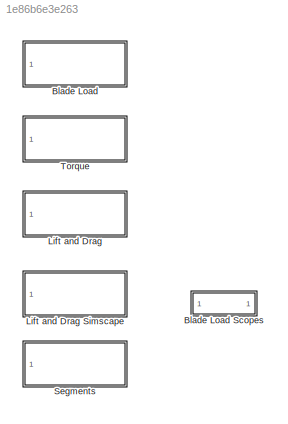
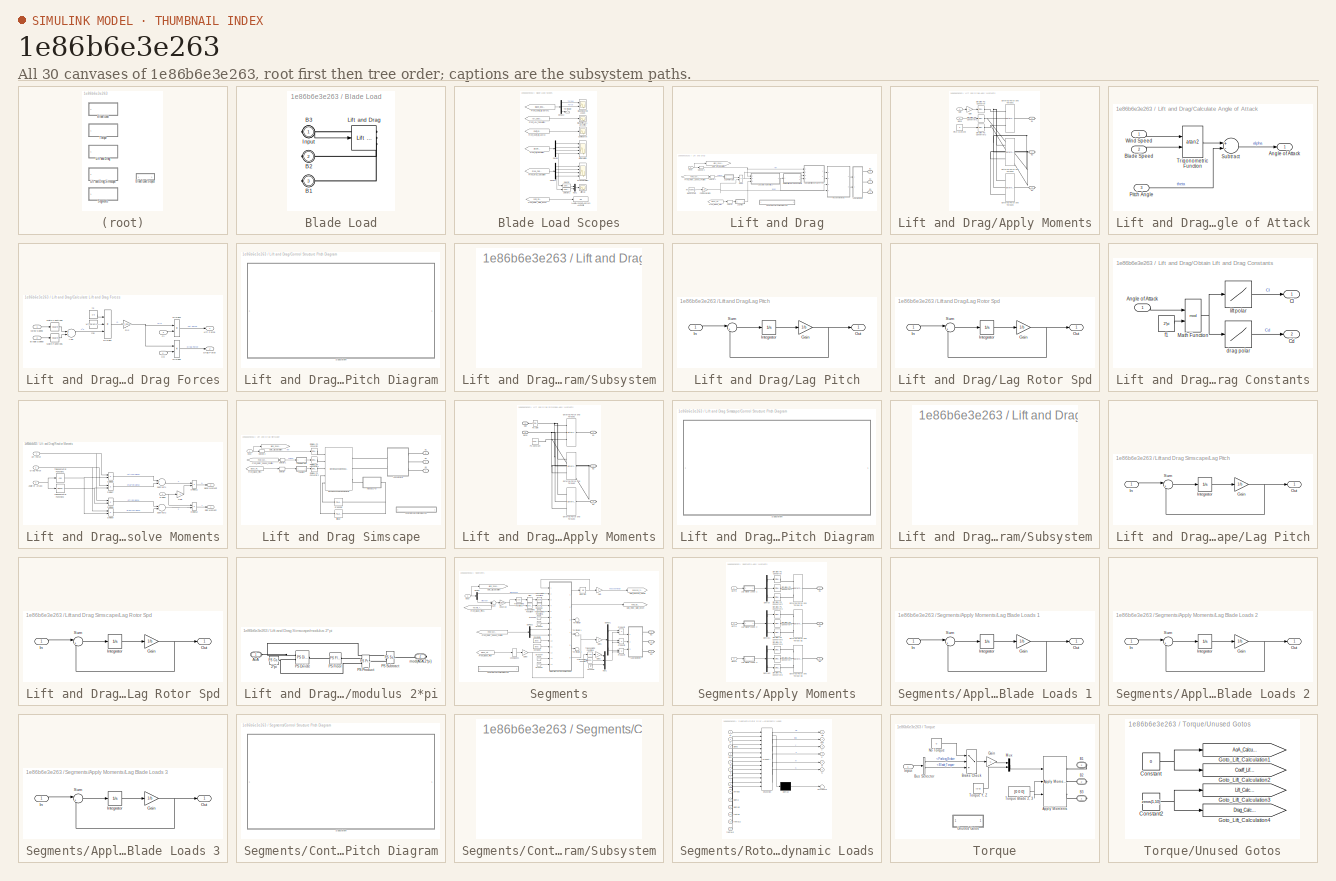
[diagram: thumbnail index - all 30 canvases of the model, root first then tree order]
MODEL slx_1e86b6e3e263
KIND library
CONFIG AbsTol = auto
CONFIG EnableMultiTasking = on
CONFIG FixedStep = auto
CONFIG MaxStep = auto
CONFIG MinStep = auto
CONFIG RelTol = 1e-3
CONFIG SampleTimeConstraint = Unconstrained
CONFIG Solver = ode45
CONFIG SolverName = ode45
CONFIG StartTime = 0.0
CONFIG StopTime = 10.0
BLOCK [SubSystem] Blade Load
  BlockChoice = Lift and Drag
  MemberBlocks = Lift and Drag,Lift and Drag Simscape,Segments,Torque
  Ports = [1, 0, 0, 0, 0, 0, 3]
  RequestExecContextInheritance = off
  TemplateBlock = self
BLOCK [SubSystem] Blade Load Scopes
  Ports = []
  RequestExecContextInheritance = off
BLOCK [Display] Blade Load Scopes/1 = Heli 2 = Young's Approx 3 = Windmill
  Decimation = 1
  Ports = [1]
BLOCK [Scope] Blade Load Scopes/Blade Bearing Loads
  Floating = off
  NumInputPorts = 2
  Ports = [2]
  ScopeSpecificationString = C++SS(StrPVP('Location','[536, 506, 1008, 715]'),StrPVP('Open','off'),StrPVP('ZoomMode','yonly'),MxPVP('AxesTitles',53,'struct(''axes1'',''%<SignalLabel>'',''axes2'',''%<SignalLabel>'')'),StrPVP('TimeRange','80'),StrPVP('YMin','-2000000~-500000'),StrPVP('YMax','4000000~500000'),StrPVP('SaveName','ScopeData10'),StrPVP('DataFormat','StructureWithTime'),StrPVP('LimitDataPoints','off'),StrPVP('BlockPa...<+443ch>
BLOCK [Scope] Blade Load Scopes/Blade Pitch, AoA Zero Pitch
  Floating = off
  NumInputPorts = 1
  Ports = [1]
  ScopeSpecificationString = C++SS(StrPVP('Location','[437, 643, 822, 910]'),StrPVP('Open','off'),StrPVP('ZoomMode','yonly'),MxPVP('AxesTitles',53,'struct(''axes1'',''%<SignalLabel>'')'),StrPVP('TimeRange','400'),StrPVP('YMin','0'),StrPVP('YMax','100'),StrPVP('SaveName','ScopeData3'),StrPVP('DataFormat','StructureWithTime'),StrPVP('LimitDataPoints','off'),StrPVP('BlockParamSampleTime','0'),StrPVP('DataLoggingDecimation','1'),...<+387ch>
BLOCK [Scope] Blade Load Scopes/Coeff Approx
  Floating = off
  NumInputPorts = 1
  Ports = [1]
  ScopeSpecificationString = C++SS(StrPVP('Location','[692, 281, 1164, 834]'),StrPVP('Open','off'),StrPVP('ZoomMode','yonly'),MxPVP('AxesTitles',53,'struct(''axes1'',''%<SignalLabel>'')'),StrPVP('TimeRange','400'),StrPVP('YMin','-0.1139986551164904'),StrPVP('YMax','0.01794057021302797'),StrPVP('SaveName','ScopeData4'),StrPVP('DataFormat','StructureWithTime'),StrPVP('LimitDataPoints','off'),StrPVP('BlockParamSampleTime','0'),S...<+422ch>
BLOCK [Demux] Blade Load Scopes/Demux
  DisplayOption = bar
  Outputs = [1 3 3 3]
  Ports = [1, 4]
BLOCK [Demux] Blade Load Scopes/Demux1
  DisplayOption = bar
  Outputs = [1 3 3 3]
  Ports = [1, 4]
BLOCK [Demux] Blade Load Scopes/Demux2
  DisplayOption = bar
  Outputs = [3 3 12]
  Ports = [1, 3]
BLOCK [Scope] Blade Load Scopes/Drag Calculation
  Floating = off
  NumInputPorts = 4
  Ports = [4]
  ScopeSpecificationString = C++SS(StrPVP('Location','[84, 409, 556, 962]'),StrPVP('Open','off'),StrPVP('ZoomMode','yonly'),MxPVP('AxesTitles',53,'struct(''axes1'',''%<SignalLabel>'',''axes2'',''%<SignalLabel>'',''axes3'',''%<SignalLabel>'',''axes4'',''%<SignalLabel>'')'),StrPVP('TimeRange','400'),StrPVP('YMin','-2000~-50~0~0'),StrPVP('YMax','4000~100~6000~6000'),StrPVP('SaveName','ScopeData5'),StrPVP('DataFormat','StructureW...<+500ch>
BLOCK [From] Blade Load Scopes/From_AoA_Calculation
  CloseFcn = tagdialog Close
  GotoTag = AoA_Calculation
BLOCK [From] Blade Load Scopes/From_Coeff_Lift_Approx
  CloseFcn = tagdialog Close
  GotoTag = Coeff_Lift_Approx
BLOCK [From] Blade Load Scopes/From_Coeff_Lift_Approx1
  CloseFcn = tagdialog Close
  GotoTag = Blade_Bearing_Loads
  TagVisibility = global
BLOCK [From] Blade Load Scopes/From_Drag_Calculation
  CloseFcn = tagdialog Close
  GotoTag = Drag_Calculation
BLOCK [From] Blade Load Scopes/From_Lift_Calculation
  CloseFcn = tagdialog Close
  GotoTag = Lift_Calculation
BLOCK [From] Blade Load Scopes/From_Rotor_State_Enum
  CloseFcn = tagdialog Close
  GotoTag = Rotor_State_Enum
BLOCK [Scope] Blade Load Scopes/Lift Calculation
  Floating = off
  NumInputPorts = 4
  Ports = [4]
  ScopeSpecificationString = C++SS(StrPVP('Location','[765, 373, 1275, 926]'),StrPVP('Open','off'),StrPVP('ZoomMode','yonly'),MxPVP('AxesTitles',53,'struct(''axes1'',''%<SignalLabel>'',''axes2'',''%<SignalLabel>'',''axes3'',''%<SignalLabel>'',''axes4'',''%<SignalLabel>'')'),StrPVP('TimeRange','400'),StrPVP('YMin','0~-50~-0.5~-50000'),StrPVP('YMax','2000~100~1.5~100000'),StrPVP('SaveName','ScopeData2'),StrPVP('DataFormat','Str...<+507ch>
BLOCK [Scope] Blade Load Scopes/Lift, Drag
  Floating = off
  NumInputPorts = 1
  Ports = [1]
  ScopeSpecificationString = C++SS(StrPVP('Location','[117, 603, 673, 870]'),StrPVP('Open','off'),StrPVP('ZoomMode','yonly'),MxPVP('AxesTitles',53,'struct(''axes1'',''%<SignalLabel>'')'),StrPVP('TimeRange','160'),StrPVP('YMin','-250.4351759669439'),StrPVP('YMax','408.3026221352307'),StrPVP('SaveName','ScopeData1'),StrPVP('DataFormat','StructureWithTime'),StrPVP('LimitDataPoints','off'),StrPVP('BlockParamSampleTime','0'),StrPV...<+418ch>
BLOCK [Mux] Blade Load Scopes/Mux1
  DisplayOption = bar
  Inputs = 2
  Ports = [2, 1]
BLOCK [Selector] Blade Load Scopes/Selector
  IndexOptions = Index vector (dialog)
  Indices = [1]
  InputPortWidth = 3
  OutputSizes = 1
  Ports = [1, 1]
BLOCK [Selector] Blade Load Scopes/Selector1
  IndexOptions = Index vector (dialog)
  Indices = [1 3]
  InputPortWidth = 3
  OutputSizes = 1
  Ports = [1, 1]
BLOCK [Terminator] Blade Load Scopes/Terminator
BLOCK [PMIOPort] Blade Load/B1
  Port = 3
  Side = Right
BLOCK [PMIOPort] Blade Load/B2
  Port = 2
  Side = Right
BLOCK [PMIOPort] Blade Load/B3
  Side = Right
BLOCK [Inport] Blade Load/Input
  IconDisplay = Port number
BLOCK [Reference] Blade Load/Lift and Drag  REF=$bdroot/Lift and Drag
  Ports = [1, 0, 0, 0, 0, 0, 3]
  SourceBlock = $bdroot/Lift and Drag
BLOCK [SubSystem] Lift and Drag
  Ports = [1, 0, 0, 0, 0, 0, 3]
  RequestExecContextInheritance = off
BLOCK [SubSystem] Lift and Drag Simscape
  Ports = [1, 0, 0, 0, 0, 0, 3]
  RequestExecContextInheritance = off
BLOCK [SubSystem] Lift and Drag Simscape/Apply Moments
  Ports = [0, 0, 0, 0, 0, 2, 3]
  RequestExecContextInheritance = off
BLOCK [PMIOPort] Lift and Drag Simscape/Apply Moments/B1
  Side = Right
BLOCK [PMIOPort] Lift and Drag Simscape/Apply Moments/B2
  Port = 2
  Side = Right
BLOCK [PMIOPort] Lift and Drag Simscape/Apply Moments/B3
  Port = 3
  Side = Right
BLOCK [PMIOPort] Lift and Drag Simscape/Apply Moments/Bend
  Port = 5
  Side = Left
BLOCK [Reference] Lift and Drag Simscape/Apply Moments/External Force and Torque1  REF=sm_lib/Forces and
Torques/External Force
and Torque
  Ports = [0, 0, 0, 0, 0, 3, 1]
  SourceBlock = sm_lib/Forces and\nTorques/External Force\nand Torque
  SourceProductBaseCode = MS
  SourceProductName = Simscape Multibody
  SourceType = External Force\nand Torque
BLOCK [Reference] Lift and Drag Simscape/Apply Moments/External Force and Torque2  REF=sm_lib/Forces and
Torques/External Force
and Torque
  Ports = [0, 0, 0, 0, 0, 3, 1]
  SourceBlock = sm_lib/Forces and\nTorques/External Force\nand Torque
  SourceProductBaseCode = MS
  SourceProductName = Simscape Multibody
  SourceType = External Force\nand Torque
BLOCK [Reference] Lift and Drag Simscape/Apply Moments/External Force and Torque3  REF=sm_lib/Forces and
Torques/External Force
and Torque
  Ports = [0, 0, 0, 0, 0, 3, 1]
  SourceBlock = sm_lib/Forces and\nTorques/External Force\nand Torque
  SourceProductBaseCode = MS
  SourceProductName = Simscape Multibody
  SourceType = External Force\nand Torque
BLOCK [Reference] Lift and Drag Simscape/Apply Moments/PS Constant  REF=fl_lib/Physical Signals/Sources/PS Constant
  Ports = [0, 0, 0, 0, 0, 0, 1]
  SourceBlock = fl_lib/Physical Signals/Sources/PS Constant
  SourceProductBaseCode = SS
  SourceProductName = Simscape
  SourceType = PS Constant
BLOCK [Reference] Lift and Drag Simscape/Apply Moments/PS Gain  REF=fl_lib/Physical Signals/Functions/PS Gain
  Ports = [0, 0, 0, 0, 0, 1, 1]
  SourceBlock = fl_lib/Physical Signals/Functions/PS Gain
  SourceProductBaseCode = SS
  SourceProductName = Simscape
  SourceType = PS Gain
BLOCK [PMIOPort] Lift and Drag Simscape/Apply Moments/Spin
  Port = 4
  Side = Left
BLOCK [PMIOPort] Lift and Drag Simscape/B1
  Port = 3
  Side = Right
  Tag = PMCPort
BLOCK [PMIOPort] Lift and Drag Simscape/B2
  Port = 2
  Side = Right
  Tag = PMCPort
BLOCK [PMIOPort] Lift and Drag Simscape/B3
  Side = Right
  Tag = PMCPort
BLOCK [Reference] Lift and Drag Simscape/Bending and Spinning Moments  REF=AerodynamicLoads_lib/Bending and Spinning
Moments
  Ports = [0, 0, 0, 0, 0, 5, 3]
  SourceBlock = AerodynamicLoads_lib/Bending and Spinning\nMoments
  SourceType = Bending and Spinning\nMoments
BLOCK [SubSystem] Lift and Drag Simscape/Control Structure Pitch Diagram
  Ports = []
  RequestExecContextInheritance = off
BLOCK [SubSystem] Lift and Drag Simscape/Control Structure Pitch Diagram/Subsystem
  Ports = []
  RequestExecContextInheritance = off
BLOCK [From] Lift and Drag Simscape/From_Blade_Pitch
  CloseFcn = tagdialog Close
  GotoTag = Blade_Pitch
  TagVisibility = global
BLOCK [From] Lift and Drag Simscape/From_Rotor_Speed_Position
  CloseFcn = tagdialog Close
  GotoTag = Rotor_Speed_Position
  TagVisibility = global
BLOCK [Goto] Lift and Drag Simscape/Goto_Lift_Calculation
  GotoTag = Wind_Speed_Direction
  TagVisibility = global
BLOCK [Inport] Lift and Drag Simscape/Input
  IconDisplay = Port number
BLOCK [SubSystem] Lift and Drag Simscape/Lag Pitch
  Ports = [1, 1]
  RequestExecContextInheritance = off
BLOCK [Gain] Lift and Drag Simscape/Lag Pitch/Gain
  Gain = 1/b
  OutDataTypeStr = Inherit: Inherit via internal rule
  ParamDataTypeStr = Inherit: Inherit via internal rule
  SaturateOnIntegerOverflow = off
BLOCK [Inport] Lift and Drag Simscape/Lag Pitch/In
  IconDisplay = Port number
BLOCK [Integrator] Lift and Drag Simscape/Lag Pitch/Integrator
  InitialCondition = x_initial
  Ports = [1, 1]
BLOCK [Outport] Lift and Drag Simscape/Lag Pitch/Out
  IconDisplay = Port number
BLOCK [Sum] Lift and Drag Simscape/Lag Pitch/Sum
  IconShape = round
  Inputs = |+-
  Ports = [2, 1]
BLOCK [SubSystem] Lift and Drag Simscape/Lag Rotor Spd
  Ports = [1, 1]
  RequestExecContextInheritance = off
BLOCK [Gain] Lift and Drag Simscape/Lag Rotor Spd/Gain
  Gain = 1/b
  OutDataTypeStr = Inherit: Inherit via internal rule
  ParamDataTypeStr = Inherit: Inherit via internal rule
  SaturateOnIntegerOverflow = off
BLOCK [Inport] Lift and Drag Simscape/Lag Rotor Spd/In
  IconDisplay = Port number
BLOCK [Integrator] Lift and Drag Simscape/Lag Rotor Spd/Integrator
  InitialCondition = x_initial
  Ports = [1, 1]
BLOCK [Outport] Lift and Drag Simscape/Lag Rotor Spd/Out
  IconDisplay = Port number
BLOCK [Sum] Lift and Drag Simscape/Lag Rotor Spd/Sum
  IconShape = round
  Inputs = |+-
  Ports = [2, 1]
BLOCK [Selector] Lift and Drag Simscape/Selector
  IndexOptions = Index vector (dialog)
  Indices = [1]
  InputPortWidth = 3
  OutputSizes = 1
  Ports = [1, 1]
BLOCK [Selector] Lift and Drag Simscape/Selector1
  IndexOptions = Index vector (dialog)
  Indices = [2]
  InputPortWidth = 2
  OutputSizes = 1
  Ports = [1, 1]
BLOCK [Selector] Lift and Drag Simscape/Selector2
  IndexOptions = Index vector (dialog)
  Indices = [1]
  InputPortWidth = 2
  OutputSizes = 1
  Ports = [1, 1]
BLOCK [Reference] Lift and Drag Simscape/Simulink-PS Converter  REF=nesl_utility/Simulink-PS
Converter
  Ports = [1, 0, 0, 0, 0, 0, 1]
  SourceBlock = nesl_utility/Simulink-PS\nConverter
  SourceProductBaseCode = SS
  SourceProductName = Simscape
  SourceType = Simulink-PS\nConverter
BLOCK [Reference] Lift and Drag Simscape/Simulink-PS Converter1  REF=nesl_utility/Simulink-PS
Converter
  Ports = [1, 0, 0, 0, 0, 0, 1]
  SourceBlock = nesl_utility/Simulink-PS\nConverter
  SourceProductBaseCode = SS
  SourceProductName = Simscape
  SourceType = Simulink-PS\nConverter
BLOCK [Reference] Lift and Drag Simscape/Simulink-PS Converter2  REF=nesl_utility/Simulink-PS
Converter
  Ports = [1, 0, 0, 0, 0, 0, 1]
  SourceBlock = nesl_utility/Simulink-PS\nConverter
  SourceProductBaseCode = SS
  SourceProductName = Simscape
  SourceType = Simulink-PS\nConverter
BLOCK [Reference] Lift and Drag Simscape/drag polar  REF=fl_lib/Physical Signals/Lookup Tables/PS Lookup Table (1D)
  Ports = [0, 0, 0, 0, 0, 1, 1]
  SourceBlock = fl_lib/Physical Signals/Lookup Tables/PS Lookup Table (1D)
  SourceProductBaseCode = SS
  SourceProductName = Simscape
  SourceType = PS Lookup Table (1D)
BLOCK [Reference] Lift and Drag Simscape/lift polar  REF=fl_lib/Physical Signals/Lookup Tables/PS Lookup Table (1D)
  Ports = [0, 0, 0, 0, 0, 1, 1]
  SourceBlock = fl_lib/Physical Signals/Lookup Tables/PS Lookup Table (1D)
  SourceProductBaseCode = SS
  SourceProductName = Simscape
  SourceType = PS Lookup Table (1D)
BLOCK [SubSystem] Lift and Drag Simscape/modulus 2*pi
  Ports = [0, 0, 0, 0, 0, 1, 1]
  RequestExecContextInheritance = off
BLOCK [Reference] Lift and Drag Simscape/modulus 2*pi/2*pi  REF=fl_lib/Physical Signals/Sources/PS Constant
  Ports = [0, 0, 0, 0, 0, 0, 1]
  SourceBlock = fl_lib/Physical Signals/Sources/PS Constant
  SourceProductBaseCode = SS
  SourceProductName = Simscape
  SourceType = PS Constant
BLOCK [PMIOPort] Lift and Drag Simscape/modulus 2*pi/AoA
  Side = Left
BLOCK [Reference] Lift and Drag Simscape/modulus 2*pi/PS Divide  REF=fl_lib/Physical Signals/Functions/PS Divide
  Ports = [0, 0, 0, 0, 0, 2, 1]
  SourceBlock = fl_lib/Physical Signals/Functions/PS Divide
  SourceProductBaseCode = SS
  SourceProductName = Simscape
  SourceType = PS Divide
BLOCK [Reference] Lift and Drag Simscape/modulus 2*pi/PS Floor  REF=fl_lib/Physical Signals/Nonlinear Operators/PS Floor
  Ports = [0, 0, 0, 0, 0, 1, 1]
  SourceBlock = fl_lib/Physical Signals/Nonlinear Operators/PS Floor
  SourceProductBaseCode = SS
  SourceProductName = Simscape
  SourceType = PS Floor
BLOCK [Reference] Lift and Drag Simscape/modulus 2*pi/PS Product  REF=fl_lib/Physical Signals/Functions/PS Product
  Ports = [0, 0, 0, 0, 0, 2, 1]
  SourceBlock = fl_lib/Physical Signals/Functions/PS Product
  SourceProductBaseCode = SS
  SourceProductName = Simscape
  SourceType = PS Product
BLOCK [Reference] Lift and Drag Simscape/modulus 2*pi/PS Subtract  REF=fl_lib/Physical Signals/Functions/PS Subtract
  Ports = [0, 0, 0, 0, 0, 2, 1]
  SourceBlock = fl_lib/Physical Signals/Functions/PS Subtract
  SourceProductBaseCode = SS
  SourceProductName = Simscape
  SourceType = PS Subtract
BLOCK [PMIOPort] Lift and Drag Simscape/modulus 2*pi/mod(AoA,2*pi)
  Port = 2
  Side = Right
BLOCK [SubSystem] Lift and Drag/Apply Moments
  Ports = [2, 0, 0, 0, 0, 0, 3]
  RequestExecContextInheritance = off
BLOCK [PMIOPort] Lift and Drag/Apply Moments/B1
  Side = Right
BLOCK [PMIOPort] Lift and Drag/Apply Moments/B2
  Port = 2
  Side = Right
BLOCK [PMIOPort] Lift and Drag/Apply Moments/B3
  Port = 3
  Side = Right
BLOCK [Inport] Lift and Drag/Apply Moments/Bend
  IconDisplay = Port number
  Port = 2
BLOCK [Reference] Lift and Drag/Apply Moments/External Force and Torque1  REF=sm_lib/Forces and
Torques/External Force
and Torque
  Ports = [0, 0, 0, 0, 0, 3, 1]
  SourceBlock = sm_lib/Forces and\nTorques/External Force\nand Torque
  SourceProductBaseCode = MS
  SourceProductName = Simscape Multibody
  SourceType = External Force\nand Torque
BLOCK [Reference] Lift and Drag/Apply Moments/External Force and Torque2  REF=sm_lib/Forces and
Torques/External Force
and Torque
  Ports = [0, 0, 0, 0, 0, 3, 1]
  SourceBlock = sm_lib/Forces and\nTorques/External Force\nand Torque
  SourceProductBaseCode = MS
  SourceProductName = Simscape Multibody
  SourceType = External Force\nand Torque
BLOCK [Reference] Lift and Drag/Apply Moments/External Force and Torque3  REF=sm_lib/Forces and
Torques/External Force
and Torque
  Ports = [0, 0, 0, 0, 0, 3, 1]
  SourceBlock = sm_lib/Forces and\nTorques/External Force\nand Torque
  SourceProductBaseCode = MS
  SourceProductName = Simscape Multibody
  SourceType = External Force\nand Torque
BLOCK [Gain] Lift and Drag/Apply Moments/Gain
  Gain = -1
  OutDataTypeStr = Inherit: Inherit via internal rule
  ParamDataTypeStr = Inherit: Inherit via internal rule
  SaturateOnIntegerOverflow = off
BLOCK [Constant] Lift and Drag/Apply Moments/Pitch Moment
  Value = 0
BLOCK [Reference] Lift and Drag/Apply Moments/Simulink-PS Converter  REF=nesl_utility/Simulink-PS
Converter
  Ports = [1, 0, 0, 0, 0, 0, 1]
  SourceBlock = nesl_utility/Simulink-PS\nConverter
  SourceProductBaseCode = SS
  SourceProductName = Simscape
  SourceType = Simulink-PS\nConverter
BLOCK [Reference] Lift and Drag/Apply Moments/Simulink-PS Converter1  REF=nesl_utility/Simulink-PS
Converter
  Ports = [1, 0, 0, 0, 0, 0, 1]
  SourceBlock = nesl_utility/Simulink-PS\nConverter
  SourceProductBaseCode = SS
  SourceProductName = Simscape
  SourceType = Simulink-PS\nConverter
BLOCK [Reference] Lift and Drag/Apply Moments/Simulink-PS Converter2  REF=nesl_utility/Simulink-PS
Converter
  Ports = [1, 0, 0, 0, 0, 0, 1]
  SourceBlock = nesl_utility/Simulink-PS\nConverter
  SourceProductBaseCode = SS
  SourceProductName = Simscape
  SourceType = Simulink-PS\nConverter
BLOCK [Inport] Lift and Drag/Apply Moments/Spin
  IconDisplay = Port number
BLOCK [PMIOPort] Lift and Drag/B1
  Port = 3
  Side = Right
  Tag = PMCPort
BLOCK [PMIOPort] Lift and Drag/B2
  Port = 2
  Side = Right
  Tag = PMCPort
BLOCK [PMIOPort] Lift and Drag/B3
  Side = Right
  Tag = PMCPort
BLOCK [Constant] Lift and Drag/Blade Length
  Value = WT_Params.Blade.length
BLOCK [SubSystem] Lift and Drag/Calculate Angle of Attack
  Ports = [3, 1]
  RequestExecContextInheritance = off
BLOCK [Outport] Lift and Drag/Calculate Angle of Attack/Angle of Attack
  IconDisplay = Port number
BLOCK [Inport] Lift and Drag/Calculate Angle of Attack/Blade Speed
  IconDisplay = Port number
  Port = 2
BLOCK [Inport] Lift and Drag/Calculate Angle of Attack/Pitch Angle
  IconDisplay = Port number
  Port = 3
BLOCK [Sum] Lift and Drag/Calculate Angle of Attack/Subtract
  InputSameDT = off
  Inputs = +-
  OutDataTypeStr = Inherit: Inherit via internal rule
  Ports = [2, 1]
  SaturateOnIntegerOverflow = off
BLOCK [Trigonometry] Lift and Drag/Calculate Angle of Attack/Trigonometric Function
  Operator = atan2
  Ports = [2, 1]
BLOCK [Inport] Lift and Drag/Calculate Angle of Attack/Wind Speed
  IconDisplay = Port number
BLOCK [SubSystem] Lift and Drag/Calculate Lift and Drag Forces
  Ports = [4, 2]
  RequestExecContextInheritance = off
BLOCK [Sum] Lift and Drag/Calculate Lift and Drag Forces/Add
  InputSameDT = off
  OutDataTypeStr = Inherit: Inherit via internal rule
  Ports = [2, 1]
  SaturateOnIntegerOverflow = off
BLOCK [Inport] Lift and Drag/Calculate Lift and Drag Forces/Blade Speed
  IconDisplay = Port number
  Port = 2
BLOCK [Inport] Lift and Drag/Calculate Lift and Drag Forces/Cd
  IconDisplay = Port number
  Port = 4
BLOCK [Inport] Lift and Drag/Calculate Lift and Drag Forces/Cl
  IconDisplay = Port number
  Port = 3
BLOCK [Product] Lift and Drag/Calculate Lift and Drag Forces/Divide1
  InputSameDT = off
  Inputs = ***
  OutDataTypeStr = Inherit: Inherit via internal rule
  Ports = [3, 1]
  RndMeth = Floor
  SaturateOnIntegerOverflow = off
BLOCK [Product] Lift and Drag/Calculate Lift and Drag Forces/Divide4
  InputSameDT = off
  Inputs = **
  OutDataTypeStr = Inherit: Inherit via internal rule
  Ports = [2, 1]
  RndMeth = Floor
  SaturateOnIntegerOverflow = off
BLOCK [Product] Lift and Drag/Calculate Lift and Drag Forces/Divide5
  InputSameDT = off
  Inputs = **
  OutDataTypeStr = Inherit: Inherit via internal rule
  Ports = [2, 1]
  RndMeth = Floor
  SaturateOnIntegerOverflow = off
BLOCK [Outport] Lift and Drag/Calculate Lift and Drag Forces/Drag Force
  IconDisplay = Port number
  Port = 2
BLOCK [Outport] Lift and Drag/Calculate Lift and Drag Forces/Lift Force
  IconDisplay = Port number
BLOCK [Math] Lift and Drag/Calculate Lift and Drag Forces/Math Function1
  Operator = square
  Ports = [1, 1]
BLOCK [Math] Lift and Drag/Calculate Lift and Drag Forces/Math Function2
  Operator = square
  Ports = [1, 1]
BLOCK [Gain] Lift and Drag/Calculate Lift and Drag Forces/R*c
  Gain = WT_Params.Blade.length*WT_Params.Blade.width
  OutDataTypeStr = Inherit: Inherit via internal rule
  ParamDataTypeStr = Inherit: Inherit via internal rule
  SaturateOnIntegerOverflow = off
BLOCK [Inport] Lift and Drag/Calculate Lift and Drag Forces/Wind Speed
  IconDisplay = Port number
BLOCK [Constant] Lift and Drag/Calculate Lift and Drag Forces/f2
  Value = 1/2
BLOCK [Constant] Lift and Drag/Calculate Lift and Drag Forces/rho
  Value = WT_Params.Air.Density
BLOCK [SubSystem] Lift and Drag/Control Structure Pitch Diagram
  Ports = []
  RequestExecContextInheritance = off
BLOCK [SubSystem] Lift and Drag/Control Structure Pitch Diagram/Subsystem
  Ports = []
  RequestExecContextInheritance = off
BLOCK [Product] Lift and Drag/Divide
  InputSameDT = off
  Inputs = **
  OutDataTypeStr = Inherit: Inherit via internal rule
  Ports = [2, 1]
  RndMeth = Floor
  SaturateOnIntegerOverflow = off
BLOCK [From] Lift and Drag/From_Blade_Pitch
  CloseFcn = tagdialog Close
  GotoTag = Blade_Pitch
  TagVisibility = global
BLOCK [From] Lift and Drag/From_Rotor_Speed_Position
  CloseFcn = tagdialog Close
  GotoTag = Rotor_Speed_Position
  TagVisibility = global
BLOCK [Goto] Lift and Drag/Goto_Lift_Calculation
  GotoTag = Wind_Speed_Direction
  TagVisibility = global
BLOCK [Inport] Lift and Drag/Input
  IconDisplay = Port number
BLOCK [SubSystem] Lift and Drag/Lag Pitch
  Ports = [1, 1]
  RequestExecContextInheritance = off
BLOCK [Gain] Lift and Drag/Lag Pitch/Gain
  Gain = 1/b
  OutDataTypeStr = Inherit: Inherit via internal rule
  ParamDataTypeStr = Inherit: Inherit via internal rule
  SaturateOnIntegerOverflow = off
BLOCK [Inport] Lift and Drag/Lag Pitch/In
  IconDisplay = Port number
BLOCK [Integrator] Lift and Drag/Lag Pitch/Integrator
  InitialCondition = x_initial
  Ports = [1, 1]
BLOCK [Outport] Lift and Drag/Lag Pitch/Out
  IconDisplay = Port number
BLOCK [Sum] Lift and Drag/Lag Pitch/Sum
  IconShape = round
  Inputs = |+-
  Ports = [2, 1]
BLOCK [SubSystem] Lift and Drag/Lag Rotor Spd
  Ports = [1, 1]
  RequestExecContextInheritance = off
BLOCK [Gain] Lift and Drag/Lag Rotor Spd/Gain
  Gain = 1/b
  OutDataTypeStr = Inherit: Inherit via internal rule
  ParamDataTypeStr = Inherit: Inherit via internal rule
  SaturateOnIntegerOverflow = off
BLOCK [Inport] Lift and Drag/Lag Rotor Spd/In
  IconDisplay = Port number
BLOCK [Integrator] Lift and Drag/Lag Rotor Spd/Integrator
  InitialCondition = x_initial
  Ports = [1, 1]
BLOCK [Outport] Lift and Drag/Lag Rotor Spd/Out
  IconDisplay = Port number
BLOCK [Sum] Lift and Drag/Lag Rotor Spd/Sum
  IconShape = round
  Inputs = |+-
  Ports = [2, 1]
BLOCK [SubSystem] Lift and Drag/Obtain Lift and Drag Constants
  Ports = [1, 2]
  RequestExecContextInheritance = off
BLOCK [Inport] Lift and Drag/Obtain Lift and Drag Constants/Angle of Attack
  IconDisplay = Port number
BLOCK [Outport] Lift and Drag/Obtain Lift and Drag Constants/Cd
  IconDisplay = Port number
  Port = 2
BLOCK [Outport] Lift and Drag/Obtain Lift and Drag Constants/Cl
  IconDisplay = Port number
BLOCK [Math] Lift and Drag/Obtain Lift and Drag Constants/Math Function
  Operator = mod
  Ports = [2, 1]
BLOCK [Lookup] Lift and Drag/Obtain Lift and Drag Constants/drag polar
  InputValues = WT_Params.NACA0015.AoA
  SaturateOnIntegerOverflow = off
  Table = WT_Params.NACA0015.Cd
BLOCK [Constant] Lift and Drag/Obtain Lift and Drag Constants/f1
  Value = 2*pi
BLOCK [Lookup] Lift and Drag/Obtain Lift and Drag Constants/lift polar
  InputValues = WT_Params.NACA0015.AoA
  SaturateOnIntegerOverflow = off
  Table = WT_Params.NACA0015.Cl
BLOCK [Gain] Lift and Drag/Point of Application
  Gain = 2/3
  OutDataTypeStr = Inherit: Inherit via internal rule
  ParamDataTypeStr = Inherit: Inherit via internal rule
  SaturateOnIntegerOverflow = off
BLOCK [SubSystem] Lift and Drag/Resolve Moments
  Ports = [4, 2]
  RequestExecContextInheritance = off
BLOCK [Inport] Lift and Drag/Resolve Moments/Angle of Attack
  IconDisplay = Port number
  Port = 3
BLOCK [Outport] Lift and Drag/Resolve Moments/Bend Moment
  IconDisplay = Port number
  Port = 2
BLOCK [Product] Lift and Drag/Resolve Moments/Divide11
  InputSameDT = off
  Inputs = **
  OutDataTypeStr = Inherit: Inherit via internal rule
  Ports = [2, 1]
  RndMeth = Floor
  SaturateOnIntegerOverflow = off
BLOCK [Product] Lift and Drag/Resolve Moments/Divide12
  InputSameDT = off
  Inputs = **
  OutDataTypeStr = Inherit: Inherit via internal rule
  Ports = [2, 1]
  RndMeth = Floor
  SaturateOnIntegerOverflow = off
BLOCK [Product] Lift and Drag/Resolve Moments/Divide6
  InputSameDT = off
  Inputs = **
  OutDataTypeStr = Inherit: Inherit via internal rule
  Ports = [2, 1]
  RndMeth = Floor
  SaturateOnIntegerOverflow = off
BLOCK [Product] Lift and Drag/Resolve Moments/Divide7
  InputSameDT = off
  Inputs = **
  OutDataTypeStr = Inherit: Inherit via internal rule
  Ports = [2, 1]
  RndMeth = Floor
  SaturateOnIntegerOverflow = off
BLOCK [Product] Lift and Drag/Resolve Moments/Divide8
  InputSameDT = off
  Inputs = **
  OutDataTypeStr = Inherit: Inherit via internal rule
  Ports = [2, 1]
  RndMeth = Floor
  SaturateOnIntegerOverflow = off
BLOCK [Product] Lift and Drag/Resolve Moments/Divide9
  InputSameDT = off
  Inputs = **
  OutDataTypeStr = Inherit: Inherit via internal rule
  Ports = [2, 1]
  RndMeth = Floor
  SaturateOnIntegerOverflow = off
BLOCK [Inport] Lift and Drag/Resolve Moments/Drag Force
  IconDisplay = Port number
  Port = 2
BLOCK [Gain] Lift and Drag/Resolve Moments/Gain
  Gain = -1
  OutDataTypeStr = Inherit: Inherit via internal rule
  ParamDataTypeStr = Inherit: Inherit via internal rule
  SaturateOnIntegerOverflow = off
BLOCK [Inport] Lift and Drag/Resolve Moments/Lift Force
  IconDisplay = Port number
BLOCK [Inport] Lift and Drag/Resolve Moments/Radius
  IconDisplay = Port number
  Port = 4
BLOCK [Outport] Lift and Drag/Resolve Moments/Spin Moment
  IconDisplay = Port number
BLOCK [Sum] Lift and Drag/Resolve Moments/Subtract1
  InputSameDT = off
  OutDataTypeStr = Inherit: Inherit via internal rule
  Ports = [2, 1]
  SaturateOnIntegerOverflow = off
BLOCK [Sum] Lift and Drag/Resolve Moments/Subtract2
  InputSameDT = off
  Inputs = +-
  OutDataTypeStr = Inherit: Inherit via internal rule
  Ports = [2, 1]
  SaturateOnIntegerOverflow = off
BLOCK [Trigonometry] Lift and Drag/Resolve Moments/Trigonometric Function1
  Operator = cos
  Ports = [1, 1]
BLOCK [Trigonometry] Lift and Drag/Resolve Moments/Trigonometric Function2
  Ports = [1, 1]
BLOCK [Selector] Lift and Drag/Selector
  IndexOptions = Index vector (dialog)
  Indices = [1]
  InputPortWidth = 3
  OutputSizes = 1
  Ports = [1, 1]
BLOCK [Selector] Lift and Drag/Selector1
  IndexOptions = Index vector (dialog)
  Indices = [2]
  InputPortWidth = 2
  OutputSizes = 1
  Ports = [1, 1]
BLOCK [Selector] Lift and Drag/Selector2
  IndexOptions = Index vector (dialog)
  Indices = [1]
  InputPortWidth = 2
  OutputSizes = 1
  Ports = [1, 1]
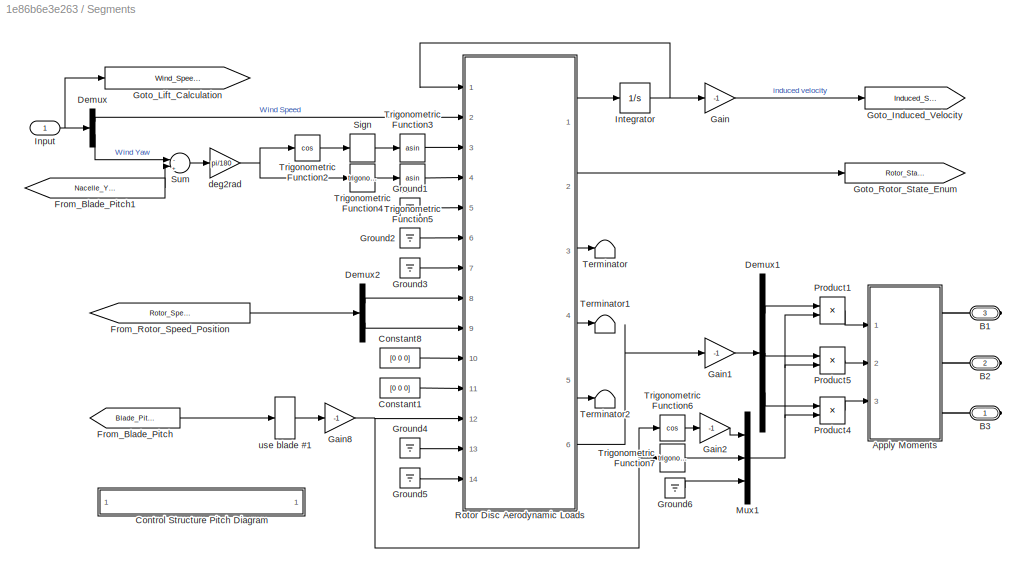
BLOCK [SubSystem] Segments
  Ports = [1, 0, 0, 0, 0, 0, 3]
  RequestExecContextInheritance = off
BLOCK [SubSystem] Segments/Apply Moments
  Ports = [3, 0, 0, 0, 0, 0, 3]
  RequestExecContextInheritance = off
BLOCK [PMIOPort] Segments/Apply Moments/B1
  Side = Right
BLOCK [Inport] Segments/Apply Moments/B1Trq
  IconDisplay = Port number
BLOCK [PMIOPort] Segments/Apply Moments/B2
  Port = 2
  Side = Right
BLOCK [Inport] Segments/Apply Moments/B2Trq
  IconDisplay = Port number
  Port = 2
BLOCK [PMIOPort] Segments/Apply Moments/B3
  Port = 3
  Side = Right
BLOCK [Inport] Segments/Apply Moments/B3Trq
  IconDisplay = Port number
  Port = 3
BLOCK [Demux] Segments/Apply Moments/Demux
  DisplayOption = bar
  Outputs = 3
  Ports = [1, 3]
BLOCK [Demux] Segments/Apply Moments/Demux1
  DisplayOption = bar
  Outputs = 3
  Ports = [1, 3]
BLOCK [Demux] Segments/Apply Moments/Demux2
  DisplayOption = bar
  Outputs = 3
  Ports = [1, 3]
BLOCK [Reference] Segments/Apply Moments/External Force and Torque B1  REF=sm_lib/Forces and
Torques/External Force
and Torque
  Ports = [0, 0, 0, 0, 0, 3, 1]
  SourceBlock = sm_lib/Forces and\nTorques/External Force\nand Torque
  SourceProductBaseCode = MS
  SourceProductName = Simscape Multibody
  SourceType = External Force\nand Torque
BLOCK [Reference] Segments/Apply Moments/External Force and Torque B2  REF=sm_lib/Forces and
Torques/External Force
and Torque
  Ports = [0, 0, 0, 0, 0, 3, 1]
  SourceBlock = sm_lib/Forces and\nTorques/External Force\nand Torque
  SourceProductBaseCode = MS
  SourceProductName = Simscape Multibody
  SourceType = External Force\nand Torque
BLOCK [Reference] Segments/Apply Moments/External Force and Torque B3  REF=sm_lib/Forces and
Torques/External Force
and Torque
  Ports = [0, 0, 0, 0, 0, 3, 1]
  SourceBlock = sm_lib/Forces and\nTorques/External Force\nand Torque
  SourceProductBaseCode = MS
  SourceProductName = Simscape Multibody
  SourceType = External Force\nand Torque
BLOCK [SubSystem] Segments/Apply Moments/Lag Blade Loads 1
  Ports = [1, 1]
  RequestExecContextInheritance = off
BLOCK [Gain] Segments/Apply Moments/Lag Blade Loads 1/Gain
  Gain = 1/b
  OutDataTypeStr = Inherit: Inherit via internal rule
  ParamDataTypeStr = Inherit: Inherit via internal rule
  SaturateOnIntegerOverflow = off
BLOCK [Inport] Segments/Apply Moments/Lag Blade Loads 1/In
  IconDisplay = Port number
BLOCK [Integrator] Segments/Apply Moments/Lag Blade Loads 1/Integrator
  InitialCondition = x_initial
  Ports = [1, 1]
BLOCK [Outport] Segments/Apply Moments/Lag Blade Loads 1/Out
  IconDisplay = Port number
BLOCK [Sum] Segments/Apply Moments/Lag Blade Loads 1/Sum
  IconShape = round
  Inputs = |+-
  Ports = [2, 1]
BLOCK [SubSystem] Segments/Apply Moments/Lag Blade Loads 2
  Ports = [1, 1]
  RequestExecContextInheritance = off
BLOCK [Gain] Segments/Apply Moments/Lag Blade Loads 2/Gain
  Gain = 1/b
  OutDataTypeStr = Inherit: Inherit via internal rule
  ParamDataTypeStr = Inherit: Inherit via internal rule
  SaturateOnIntegerOverflow = off
BLOCK [Inport] Segments/Apply Moments/Lag Blade Loads 2/In
  IconDisplay = Port number
BLOCK [Integrator] Segments/Apply Moments/Lag Blade Loads 2/Integrator
  InitialCondition = x_initial
  Ports = [1, 1]
BLOCK [Outport] Segments/Apply Moments/Lag Blade Loads 2/Out
  IconDisplay = Port number
BLOCK [Sum] Segments/Apply Moments/Lag Blade Loads 2/Sum
  IconShape = round
  Inputs = |+-
  Ports = [2, 1]
BLOCK [SubSystem] Segments/Apply Moments/Lag Blade Loads 3
  Ports = [1, 1]
  RequestExecContextInheritance = off
BLOCK [Gain] Segments/Apply Moments/Lag Blade Loads 3/Gain
  Gain = 1/b
  OutDataTypeStr = Inherit: Inherit via internal rule
  ParamDataTypeStr = Inherit: Inherit via internal rule
  SaturateOnIntegerOverflow = off
BLOCK [Inport] Segments/Apply Moments/Lag Blade Loads 3/In
  IconDisplay = Port number
BLOCK [Integrator] Segments/Apply Moments/Lag Blade Loads 3/Integrator
  InitialCondition = x_initial
  Ports = [1, 1]
BLOCK [Outport] Segments/Apply Moments/Lag Blade Loads 3/Out
  IconDisplay = Port number
BLOCK [Sum] Segments/Apply Moments/Lag Blade Loads 3/Sum
  IconShape = round
  Inputs = |+-
  Ports = [2, 1]
BLOCK [Reference] Segments/Apply Moments/Simulink-PS Converter  REF=nesl_utility/Simulink-PS
Converter
  Ports = [1, 0, 0, 0, 0, 0, 1]
  SourceBlock = nesl_utility/Simulink-PS\nConverter
  SourceProductBaseCode = SS
  SourceProductName = Simscape
  SourceType = Simulink-PS\nConverter
BLOCK [Reference] Segments/Apply Moments/Simulink-PS Converter1  REF=nesl_utility/Simulink-PS
Converter
  Ports = [1, 0, 0, 0, 0, 0, 1]
  SourceBlock = nesl_utility/Simulink-PS\nConverter
  SourceProductBaseCode = SS
  SourceProductName = Simscape
  SourceType = Simulink-PS\nConverter
BLOCK [Reference] Segments/Apply Moments/Simulink-PS Converter2  REF=nesl_utility/Simulink-PS
Converter
  Ports = [1, 0, 0, 0, 0, 0, 1]
  SourceBlock = nesl_utility/Simulink-PS\nConverter
  SourceProductBaseCode = SS
  SourceProductName = Simscape
  SourceType = Simulink-PS\nConverter
BLOCK [Reference] Segments/Apply Moments/Simulink-PS Converter3  REF=nesl_utility/Simulink-PS
Converter
  Ports = [1, 0, 0, 0, 0, 0, 1]
  SourceBlock = nesl_utility/Simulink-PS\nConverter
  SourceProductBaseCode = SS
  SourceProductName = Simscape
  SourceType = Simulink-PS\nConverter
BLOCK [Reference] Segments/Apply Moments/Simulink-PS Converter4  REF=nesl_utility/Simulink-PS
Converter
  Ports = [1, 0, 0, 0, 0, 0, 1]
  SourceBlock = nesl_utility/Simulink-PS\nConverter
  SourceProductBaseCode = SS
  SourceProductName = Simscape
  SourceType = Simulink-PS\nConverter
BLOCK [Reference] Segments/Apply Moments/Simulink-PS Converter5  REF=nesl_utility/Simulink-PS
Converter
  Ports = [1, 0, 0, 0, 0, 0, 1]
  SourceBlock = nesl_utility/Simulink-PS\nConverter
  SourceProductBaseCode = SS
  SourceProductName = Simscape
  SourceType = Simulink-PS\nConverter
BLOCK [Reference] Segments/Apply Moments/Simulink-PS Converter6  REF=nesl_utility/Simulink-PS
Converter
  Ports = [1, 0, 0, 0, 0, 0, 1]
  SourceBlock = nesl_utility/Simulink-PS\nConverter
  SourceProductBaseCode = SS
  SourceProductName = Simscape
  SourceType = Simulink-PS\nConverter
BLOCK [Reference] Segments/Apply Moments/Simulink-PS Converter7  REF=nesl_utility/Simulink-PS
Converter
  Ports = [1, 0, 0, 0, 0, 0, 1]
  SourceBlock = nesl_utility/Simulink-PS\nConverter
  SourceProductBaseCode = SS
  SourceProductName = Simscape
  SourceType = Simulink-PS\nConverter
BLOCK [Reference] Segments/Apply Moments/Simulink-PS Converter8  REF=nesl_utility/Simulink-PS
Converter
  Ports = [1, 0, 0, 0, 0, 0, 1]
  SourceBlock = nesl_utility/Simulink-PS\nConverter
  SourceProductBaseCode = SS
  SourceProductName = Simscape
  SourceType = Simulink-PS\nConverter
BLOCK [PMIOPort] Segments/B1
  Port = 3
  Side = Right
BLOCK [PMIOPort] Segments/B2
  Port = 2
  Side = Right
BLOCK [PMIOPort] Segments/B3
  Side = Right
BLOCK [Constant] Segments/Constant1
  Value = [0 0 0]
BLOCK [Constant] Segments/Constant8
  Value = [0 0 0]
BLOCK [SubSystem] Segments/Control Structure Pitch Diagram
  Ports = []
  RequestExecContextInheritance = off
BLOCK [SubSystem] Segments/Control Structure Pitch Diagram/Subsystem
  Ports = []
  RequestExecContextInheritance = off
BLOCK [Demux] Segments/Demux
  DisplayOption = bar
  Outputs = 2
  Ports = [1, 2]
BLOCK [Demux] Segments/Demux1
  DisplayOption = bar
  Outputs = 3
  Ports = [1, 3]
BLOCK [Demux] Segments/Demux2
  DisplayOption = bar
  Outputs = 2
  Ports = [1, 2]
BLOCK [From] Segments/From_Blade_Pitch
  CloseFcn = tagdialog Close
  GotoTag = Blade_Pitch
  TagVisibility = global
BLOCK [From] Segments/From_Blade_Pitch1
  CloseFcn = tagdialog Close
  GotoTag = Nacelle_Yaw_Angle
  TagVisibility = global
BLOCK [From] Segments/From_Rotor_Speed_Position
  CloseFcn = tagdialog Close
  GotoTag = Rotor_Speed_Position
  TagVisibility = global
BLOCK [Gain] Segments/Gain
  Gain = -1
  OutDataTypeStr = Inherit: Inherit via internal rule
  ParamDataTypeStr = Inherit: Inherit via internal rule
  SaturateOnIntegerOverflow = off
BLOCK [Gain] Segments/Gain1
  Gain = -1
  OutDataTypeStr = Inherit: Inherit via internal rule
  ParamDataTypeStr = Inherit: Inherit via internal rule
  SaturateOnIntegerOverflow = off
BLOCK [Gain] Segments/Gain2
  Gain = -1
  OutDataTypeStr = Inherit: Inherit via internal rule
  ParamDataTypeStr = Inherit: Inherit via internal rule
  SaturateOnIntegerOverflow = off
BLOCK [Gain] Segments/Gain8
  Gain = -1
  OutDataTypeStr = Inherit: Inherit via internal rule
  ParamDataTypeStr = Inherit: Inherit via internal rule
  SaturateOnIntegerOverflow = off
BLOCK [Goto] Segments/Goto_Induced_Velocity
  GotoTag = Induced_Speed
  TagVisibility = global
BLOCK [Goto] Segments/Goto_Lift_Calculation
  GotoTag = Wind_Speed_Direction
  TagVisibility = global
BLOCK [Goto] Segments/Goto_Rotor_State_Enum
  GotoTag = Rotor_State_Enum
  TagVisibility = global
BLOCK [Ground] Segments/Ground1
BLOCK [Ground] Segments/Ground2
BLOCK [Ground] Segments/Ground3
BLOCK [Ground] Segments/Ground4
BLOCK [Ground] Segments/Ground5
BLOCK [Ground] Segments/Ground6
BLOCK [Inport] Segments/Input
  IconDisplay = Port number
BLOCK [Integrator] Segments/Integrator
  Ports = [1, 1]
BLOCK [Mux] Segments/Mux1
  DisplayOption = bar
  Inputs = 3
  Ports = [3, 1]
BLOCK [Product] Segments/Product1
  InputSameDT = off
  OutDataTypeStr = Inherit: Inherit via internal rule
  Ports = [2, 1]
  SaturateOnIntegerOverflow = off
BLOCK [Product] Segments/Product4
  InputSameDT = off
  OutDataTypeStr = Inherit: Inherit via internal rule
  Ports = [2, 1]
  SaturateOnIntegerOverflow = off
BLOCK [Product] Segments/Product5
  InputSameDT = off
  OutDataTypeStr = Inherit: Inherit via internal rule
  Ports = [2, 1]
  SaturateOnIntegerOverflow = off
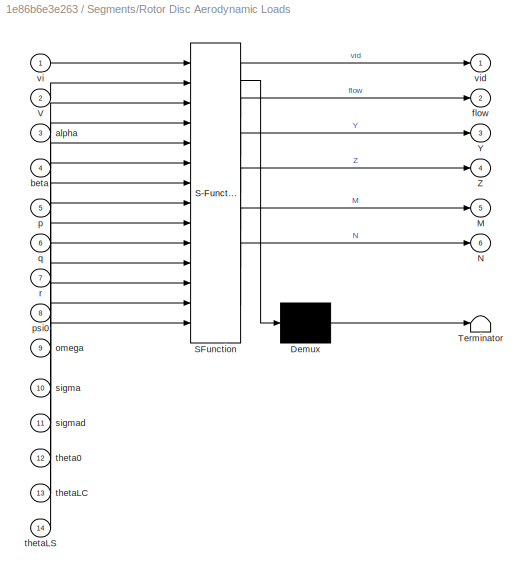
BLOCK [SubSystem] Segments/Rotor Disc Aerodynamic Loads
  ErrorFcn = Stateflow.Translate.translate
  PermitHierarchicalResolution = ExplicitOnly
  Ports = [14, 6]
  RequestExecContextInheritance = off
  SFBlockType = MATLAB Function
  SystemSampleTime = 0.01
  TreatAsAtomicUnit = on
BLOCK [Demux] Segments/Rotor Disc Aerodynamic Loads/ Demux 
  Outputs = 1
  Ports = [1, 1]
BLOCK [S-Function] Segments/Rotor Disc Aerodynamic Loads/ SFunction 
  EnableBusSupport = off
  FunctionName = sf_sfun
  Parameters = WT_Params
  PortCounts = [14 7]
  Ports = [14, 7]
  SFcnIsStateOwnerBlock = off
  SFunctionDeploymentMode = off
  Tag = Stateflow S-Function Wind_Lib 1
BLOCK [Terminator] Segments/Rotor Disc Aerodynamic Loads/ Terminator 
BLOCK [Outport] Segments/Rotor Disc Aerodynamic Loads/M
  IconDisplay = Port number
  Port = 5
BLOCK [Outport] Segments/Rotor Disc Aerodynamic Loads/N
  IconDisplay = Port number
  Port = 6
BLOCK [Inport] Segments/Rotor Disc Aerodynamic Loads/V
  IconDisplay = Port number
  Port = 2
BLOCK [Outport] Segments/Rotor Disc Aerodynamic Loads/Y
  IconDisplay = Port number
  Port = 3
BLOCK [Outport] Segments/Rotor Disc Aerodynamic Loads/Z
  IconDisplay = Port number
  Port = 4
BLOCK [Inport] Segments/Rotor Disc Aerodynamic Loads/alpha
  IconDisplay = Port number
  Port = 3
BLOCK [Inport] Segments/Rotor Disc Aerodynamic Loads/beta
  IconDisplay = Port number
  Port = 4
BLOCK [Outport] Segments/Rotor Disc Aerodynamic Loads/flow
  IconDisplay = Port number
  Port = 2
BLOCK [Inport] Segments/Rotor Disc Aerodynamic Loads/omega
  IconDisplay = Port number
  Port = 9
BLOCK [Inport] Segments/Rotor Disc Aerodynamic Loads/p
  IconDisplay = Port number
  Port = 5
BLOCK [Inport] Segments/Rotor Disc Aerodynamic Loads/psi0
  IconDisplay = Port number
  Port = 8
BLOCK [Inport] Segments/Rotor Disc Aerodynamic Loads/q
  IconDisplay = Port number
  Port = 6
BLOCK [Inport] Segments/Rotor Disc Aerodynamic Loads/r
  IconDisplay = Port number
  Port = 7
BLOCK [Inport] Segments/Rotor Disc Aerodynamic Loads/sigma
  IconDisplay = Port number
  Port = 10
BLOCK [Inport] Segments/Rotor Disc Aerodynamic Loads/sigmad
  IconDisplay = Port number
  Port = 11
BLOCK [Inport] Segments/Rotor Disc Aerodynamic Loads/theta0
  IconDisplay = Port number
  Port = 12
BLOCK [Inport] Segments/Rotor Disc Aerodynamic Loads/thetaLC
  IconDisplay = Port number
  Port = 13
BLOCK [Inport] Segments/Rotor Disc Aerodynamic Loads/thetaLS
  IconDisplay = Port number
  Port = 14
BLOCK [Inport] Segments/Rotor Disc Aerodynamic Loads/vi
  IconDisplay = Port number
BLOCK [Outport] Segments/Rotor Disc Aerodynamic Loads/vid
  IconDisplay = Port number
BLOCK [Signum] Segments/Sign
BLOCK [Sum] Segments/Sum
  IconShape = round
  InputSameDT = off
  Inputs = -|+
  OutDataTypeStr = Inherit: Inherit via internal rule
  Ports = [2, 1]
  SaturateOnIntegerOverflow = off
BLOCK [Terminator] Segments/Terminator
BLOCK [Terminator] Segments/Terminator1
BLOCK [Terminator] Segments/Terminator2
BLOCK [Trigonometry] Segments/Trigonometric Function2
  Operator = cos
  Ports = [1, 1]
BLOCK [Trigonometry] Segments/Trigonometric Function3
  Operator = asin
  Ports = [1, 1]
BLOCK [Trigonometry] Segments/Trigonometric Function4
  Ports = [1, 1]
BLOCK [Trigonometry] Segments/Trigonometric Function5
  Operator = asin
  Ports = [1, 1]
BLOCK [Trigonometry] Segments/Trigonometric Function6
  Operator = cos
  Ports = [1, 1]
BLOCK [Trigonometry] Segments/Trigonometric Function7
  Ports = [1, 1]
BLOCK [Gain] Segments/deg2rad
  Gain = pi/180
  OutDataTypeStr = Inherit: Inherit via internal rule
  ParamDataTypeStr = Inherit: Inherit via internal rule
  SaturateOnIntegerOverflow = off
BLOCK [Selector] Segments/use blade #1
  IndexOptions = Index vector (dialog)
  Indices = [1]
  InputPortWidth = 3
  OutputSizes = 1
  Ports = [1, 1]
BLOCK [SubSystem] Torque
  Ports = [1, 0, 0, 0, 0, 0, 3]
  RequestExecContextInheritance = off
BLOCK [Reference] Torque/Apply Moments  REF=$bdroot/Segments/Apply
Moments
  Ports = [3, 0, 0, 0, 0, 0, 3]
  SourceBlock = $bdroot/Segments/Apply\nMoments
  SourceType = SubSystem
BLOCK [PMIOPort] Torque/B1
  Port = 3
  Side = Right
  Tag = PMCPort
BLOCK [PMIOPort] Torque/B2
  Port = 2
  Side = Right
  Tag = PMCPort
BLOCK [PMIOPort] Torque/B3
  Side = Right
  Tag = PMCPort
BLOCK [Switch] Torque/Brake Check
  Criteria = u2 > Threshold
  InputSameDT = off
  SaturateOnIntegerOverflow = off
BLOCK [BusSelector] Torque/Bus Selector
  OutputAsBus = off
  OutputSignals = Parking_Brake,Blade_Torque
  Ports = [1, 2]
BLOCK [Gain] Torque/Gain
  Gain = -1
  OutDataTypeStr = Inherit: Inherit via internal rule
  ParamDataTypeStr = Inherit: Inherit via internal rule
  SaturateOnIntegerOverflow = off
BLOCK [Inport] Torque/Input
  IconDisplay = Port number
BLOCK [Mux] Torque/Mux
  DisplayOption = bar
  Inputs = 2
  Ports = [2, 1]
BLOCK [Constant] Torque/No Torque
  Value = 0
BLOCK [Constant] Torque/Torque Blade 2, 3
  Value = [0 0 0]
BLOCK [Constant] Torque/Torque Y, Z
  Value = [0 0]
BLOCK [SubSystem] Torque/Unused Gotos
  Ports = []
  RequestExecContextInheritance = off
BLOCK [Constant] Torque/Unused Gotos/Constant
  Value = 0
BLOCK [Constant] Torque/Unused Gotos/Constant2
  Value = zeros(1,10)
BLOCK [Goto] Torque/Unused Gotos/Goto_Lift_Calculation1
  GotoTag = AoA_Calculation
  TagVisibility = global
BLOCK [Goto] Torque/Unused Gotos/Goto_Lift_Calculation2
  GotoTag = Coeff_Lift_Approx
  TagVisibility = global
BLOCK [Goto] Torque/Unused Gotos/Goto_Lift_Calculation3
  GotoTag = Lift_Calculation
  TagVisibility = global
BLOCK [Goto] Torque/Unused Gotos/Goto_Lift_Calculation4
  GotoTag = Drag_Calculation
  TagVisibility = global
LINE Blade Load Scopes/Demux1:1 -> Blade Load Scopes/Drag Calculation:1
LINE Blade Load Scopes/Demux1:2 -> Blade Load Scopes/Drag Calculation:2
LINE Blade Load Scopes/Demux1:3 -> Blade Load Scopes/Drag Calculation:3
NET Blade Load Scopes/Demux1:4 -> Blade Load Scopes/Drag Calculation:4, Blade Load Scopes/Selector1:1
LINE Blade Load Scopes/Demux2:1 -> Blade Load Scopes/Blade Bearing Loads:1
LINE Blade Load Scopes/Demux2:2 -> Blade Load Scopes/Blade Bearing Loads:2
LINE Blade Load Scopes/Demux2:3 -> Blade Load Scopes/Terminator:1
LINE Blade Load Scopes/Demux:1 -> Blade Load Scopes/Lift Calculation:1
LINE Blade Load Scopes/Demux:2 -> Blade Load Scopes/Lift Calculation:2
LINE Blade Load Scopes/Demux:3 -> Blade Load Scopes/Lift Calculation:3
NET Blade Load Scopes/Demux:4 -> Blade Load Scopes/Lift Calculation:4, Blade Load Scopes/Selector:1
LINE Blade Load Scopes/From_AoA_Calculation:1 -> Blade Load Scopes/Blade Pitch, AoA Zero Pitch:1
LINE Blade Load Scopes/From_Coeff_Lift_Approx1:1 -> Blade Load Scopes/Demux2:1
LINE Blade Load Scopes/From_Coeff_Lift_Approx:1 -> Blade Load Scopes/Coeff Approx:1
LINE Blade Load Scopes/From_Drag_Calculation:1 -> Blade Load Scopes/Demux1:1
LINE Blade Load Scopes/From_Lift_Calculation:1 -> Blade Load Scopes/Demux:1
LINE Blade Load Scopes/From_Rotor_State_Enum:1 -> Blade Load Scopes/1 = Heli 2 = Young's Approx 3 = Windmill:1
LINE Blade Load Scopes/Mux1:1 -> Blade Load Scopes/Lift, Drag:1
LINE Blade Load Scopes/Selector1:1 -> Blade Load Scopes/Mux1:2
LINE Blade Load Scopes/Selector:1 -> Blade Load Scopes/Mux1:1
LINE Blade Load/Input:1 -> Blade Load/Lift and Drag:1
LINE Lift and Drag Simscape/From_Blade_Pitch:1 -> Lift and Drag Simscape/Selector:1
LINE Lift and Drag Simscape/From_Rotor_Speed_Position:1 -> Lift and Drag Simscape/Selector1:1
NET Lift and Drag Simscape/Input:1 -> Lift and Drag Simscape/Goto_Lift_Calculation:1, Lift and Drag Simscape/Selector2:1
NET Lift and Drag Simscape/Lag Pitch/Gain:1 -> Lift and Drag Simscape/Lag Pitch/Out:1, Lift and Drag Simscape/Lag Pitch/Sum:2
LINE Lift and Drag Simscape/Lag Pitch/In:1 -> Lift and Drag Simscape/Lag Pitch/Sum:1
LINE Lift and Drag Simscape/Lag Pitch/Integrator:1 -> Lift and Drag Simscape/Lag Pitch/Gain:1
LINE Lift and Drag Simscape/Lag Pitch/Sum:1 -> Lift and Drag Simscape/Lag Pitch/Integrator:1
LINE Lift and Drag Simscape/Lag Pitch:1 -> Lift and Drag Simscape/Simulink-PS Converter2:1
NET Lift and Drag Simscape/Lag Rotor Spd/Gain:1 -> Lift and Drag Simscape/Lag Rotor Spd/Out:1, Lift and Drag Simscape/Lag Rotor Spd/Sum:2
LINE Lift and Drag Simscape/Lag Rotor Spd/In:1 -> Lift and Drag Simscape/Lag Rotor Spd/Sum:1
LINE Lift and Drag Simscape/Lag Rotor Spd/Integrator:1 -> Lift and Drag Simscape/Lag Rotor Spd/Gain:1
LINE Lift and Drag Simscape/Lag Rotor Spd/Sum:1 -> Lift and Drag Simscape/Lag Rotor Spd/Integrator:1
LINE Lift and Drag Simscape/Lag Rotor Spd:1 -> Lift and Drag Simscape/Simulink-PS Converter1:1
LINE Lift and Drag Simscape/Selector1:1 -> Lift and Drag Simscape/Lag Rotor Spd:1
LINE Lift and Drag Simscape/Selector2:1 -> Lift and Drag Simscape/Simulink-PS Converter:1
LINE Lift and Drag Simscape/Selector:1 -> Lift and Drag Simscape/Lag Pitch:1
LINE Lift and Drag/Apply Moments/Bend:1 -> Lift and Drag/Apply Moments/Simulink-PS Converter1:1
LINE Lift and Drag/Apply Moments/Gain:1 -> Lift and Drag/Apply Moments/Simulink-PS Converter:1
LINE Lift and Drag/Apply Moments/Pitch Moment:1 -> Lift and Drag/Apply Moments/Simulink-PS Converter2:1
LINE Lift and Drag/Apply Moments/Spin:1 -> Lift and Drag/Apply Moments/Gain:1
LINE Lift and Drag/Blade Length:1 -> Lift and Drag/Point of Application:1
LINE Lift and Drag/Calculate Angle of Attack/Blade Speed:1 -> Lift and Drag/Calculate Angle of Attack/Trigonometric Function:2
LINE Lift and Drag/Calculate Angle of Attack/Pitch Angle:1 -> Lift and Drag/Calculate Angle of Attack/Subtract:2
LINE Lift and Drag/Calculate Angle of Attack/Subtract:1 -> Lift and Drag/Calculate Angle of Attack/Angle of Attack:1
LINE Lift and Drag/Calculate Angle of Attack/Trigonometric Function:1 -> Lift and Drag/Calculate Angle of Attack/Subtract:1
LINE Lift and Drag/Calculate Angle of Attack/Wind Speed:1 -> Lift and Drag/Calculate Angle of Attack/Trigonometric Function:1
NET Lift and Drag/Calculate Angle of Attack:1 -> Lift and Drag/Obtain Lift and Drag Constants:1, Lift and Drag/Resolve Moments:3
LINE Lift and Drag/Calculate Lift and Drag Forces/Add:1 -> Lift and Drag/Calculate Lift and Drag Forces/Divide1:3
LINE Lift and Drag/Calculate Lift and Drag Forces/Blade Speed:1 -> Lift and Drag/Calculate Lift and Drag Forces/Math Function1:1
LINE Lift and Drag/Calculate Lift and Drag Forces/Cd:1 -> Lift and Drag/Calculate Lift and Drag Forces/Divide5:2
LINE Lift and Drag/Calculate Lift and Drag Forces/Cl:1 -> Lift and Drag/Calculate Lift and Drag Forces/Divide4:2
LINE Lift and Drag/Calculate Lift and Drag Forces/Divide1:1 -> Lift and Drag/Calculate Lift and Drag Forces/R*c:1
LINE Lift and Drag/Calculate Lift and Drag Forces/Divide4:1 -> Lift and Drag/Calculate Lift and Drag Forces/Lift Force:1
LINE Lift and Drag/Calculate Lift and Drag Forces/Divide5:1 -> Lift and Drag/Calculate Lift and Drag Forces/Drag Force:1
LINE Lift and Drag/Calculate Lift and Drag Forces/Math Function1:1 -> Lift and Drag/Calculate Lift and Drag Forces/Add:2
LINE Lift and Drag/Calculate Lift and Drag Forces/Math Function2:1 -> Lift and Drag/Calculate Lift and Drag Forces/Add:1
NET Lift and Drag/Calculate Lift and Drag Forces/R*c:1 -> Lift and Drag/Calculate Lift and Drag Forces/Divide4:1, Lift and Drag/Calculate Lift and Drag Forces/Divide5:1
LINE Lift and Drag/Calculate Lift and Drag Forces/Wind Speed:1 -> Lift and Drag/Calculate Lift and Drag Forces/Math Function2:1
LINE Lift and Drag/Calculate Lift and Drag Forces/f2:1 -> Lift and Drag/Calculate Lift and Drag Forces/Divide1:1
LINE Lift and Drag/Calculate Lift and Drag Forces/rho:1 -> Lift and Drag/Calculate Lift and Drag Forces/Divide1:2
LINE Lift and Drag/Calculate Lift and Drag Forces:1 -> Lift and Drag/Resolve Moments:1
LINE Lift and Drag/Calculate Lift and Drag Forces:2 -> Lift and Drag/Resolve Moments:2
NET Lift and Drag/Divide:1 -> Lift and Drag/Calculate Angle of Attack:2, Lift and Drag/Calculate Lift and Drag Forces:2
LINE Lift and Drag/From_Blade_Pitch:1 -> Lift and Drag/Selector:1
LINE Lift and Drag/From_Rotor_Speed_Position:1 -> Lift and Drag/Selector1:1
NET Lift and Drag/Input:1 -> Lift and Drag/Goto_Lift_Calculation:1, Lift and Drag/Selector2:1
NET Lift and Drag/Lag Pitch/Gain:1 -> Lift and Drag/Lag Pitch/Out:1, Lift and Drag/Lag Pitch/Sum:2
LINE Lift and Drag/Lag Pitch/In:1 -> Lift and Drag/Lag Pitch/Sum:1
LINE Lift and Drag/Lag Pitch/Integrator:1 -> Lift and Drag/Lag Pitch/Gain:1
LINE Lift and Drag/Lag Pitch/Sum:1 -> Lift and Drag/Lag Pitch/Integrator:1
LINE Lift and Drag/Lag Pitch:1 -> Lift and Drag/Calculate Angle of Attack:3
NET Lift and Drag/Lag Rotor Spd/Gain:1 -> Lift and Drag/Lag Rotor Spd/Out:1, Lift and Drag/Lag Rotor Spd/Sum:2
LINE Lift and Drag/Lag Rotor Spd/In:1 -> Lift and Drag/Lag Rotor Spd/Sum:1
LINE Lift and Drag/Lag Rotor Spd/Integrator:1 -> Lift and Drag/Lag Rotor Spd/Gain:1
LINE Lift and Drag/Lag Rotor Spd/Sum:1 -> Lift and Drag/Lag Rotor Spd/Integrator:1
LINE Lift and Drag/Lag Rotor Spd:1 -> Lift and Drag/Divide:1
LINE Lift and Drag/Obtain Lift and Drag Constants/Angle of Attack:1 -> Lift and Drag/Obtain Lift and Drag Constants/Math Function:1
NET Lift and Drag/Obtain Lift and Drag Constants/Math Function:1 -> Lift and Drag/Obtain Lift and Drag Constants/drag polar:1, Lift and Drag/Obtain Lift and Drag Constants/lift polar:1
LINE Lift and Drag/Obtain Lift and Drag Constants/drag polar:1 -> Lift and Drag/Obtain Lift and Drag Constants/Cd:1
LINE Lift and Drag/Obtain Lift and Drag Constants/f1:1 -> Lift and Drag/Obtain Lift and Drag Constants/Math Function:2
LINE Lift and Drag/Obtain Lift and Drag Constants/lift polar:1 -> Lift and Drag/Obtain Lift and Drag Constants/Cl:1
LINE Lift and Drag/Obtain Lift and Drag Constants:1 -> Lift and Drag/Calculate Lift and Drag Forces:3
LINE Lift and Drag/Obtain Lift and Drag Constants:2 -> Lift and Drag/Calculate Lift and Drag Forces:4
NET Lift and Drag/Point of Application:1 -> Lift and Drag/Divide:2, Lift and Drag/Resolve Moments:4
NET Lift and Drag/Resolve Moments/Angle of Attack:1 -> Lift and Drag/Resolve Moments/Trigonometric Function1:1, Lift and Drag/Resolve Moments/Trigonometric Function2:1
LINE Lift and Drag/Resolve Moments/Divide11:1 -> Lift and Drag/Resolve Moments/Bend Moment:1
LINE Lift and Drag/Resolve Moments/Divide12:1 -> Lift and Drag/Resolve Moments/Spin Moment:1
LINE Lift and Drag/Resolve Moments/Divide6:1 -> Lift and Drag/Resolve Moments/Subtract1:1
LINE Lift and Drag/Resolve Moments/Divide7:1 -> Lift and Drag/Resolve Moments/Subtract1:2
LINE Lift and Drag/Resolve Moments/Divide8:1 -> Lift and Drag/Resolve Moments/Subtract2:1
LINE Lift and Drag/Resolve Moments/Divide9:1 -> Lift and Drag/Resolve Moments/Subtract2:2
NET Lift and Drag/Resolve Moments/Drag Force:1 -> Lift and Drag/Resolve Moments/Divide7:1, Lift and Drag/Resolve Moments/Divide9:1
LINE Lift and Drag/Resolve Moments/Gain:1 -> Lift and Drag/Resolve Moments/Divide11:2
NET Lift and Drag/Resolve Moments/Lift Force:1 -> Lift and Drag/Resolve Moments/Divide6:1, Lift and Drag/Resolve Moments/Divide8:1
NET Lift and Drag/Resolve Moments/Radius:1 -> Lift and Drag/Resolve Moments/Divide12:1, Lift and Drag/Resolve Moments/Gain:1
LINE Lift and Drag/Resolve Moments/Subtract1:1 -> Lift and Drag/Resolve Moments/Divide11:1
LINE Lift and Drag/Resolve Moments/Subtract2:1 -> Lift and Drag/Resolve Moments/Divide12:2
NET Lift and Drag/Resolve Moments/Trigonometric Function1:1 -> Lift and Drag/Resolve Moments/Divide6:2, Lift and Drag/Resolve Moments/Divide9:2
NET Lift and Drag/Resolve Moments/Trigonometric Function2:1 -> Lift and Drag/Resolve Moments/Divide7:2, Lift and Drag/Resolve Moments/Divide8:2
LINE Lift and Drag/Resolve Moments:1 -> Lift and Drag/Apply Moments:1
LINE Lift and Drag/Resolve Moments:2 -> Lift and Drag/Apply Moments:2
LINE Lift and Drag/Selector1:1 -> Lift and Drag/Lag Rotor Spd:1
NET Lift and Drag/Selector2:1 -> Lift and Drag/Calculate Angle of Attack:1, Lift and Drag/Calculate Lift and Drag Forces:1
LINE Lift and Drag/Selector:1 -> Lift and Drag/Lag Pitch:1
LINE Segments/Apply Moments/B1Trq:1 -> Segments/Apply Moments/Lag Blade Loads 1:1
LINE Segments/Apply Moments/B2Trq:1 -> Segments/Apply Moments/Lag Blade Loads 2:1
LINE Segments/Apply Moments/B3Trq:1 -> Segments/Apply Moments/Lag Blade Loads 3:1
LINE Segments/Apply Moments/Demux1:1 -> Segments/Apply Moments/Simulink-PS Converter3:1
LINE Segments/Apply Moments/Demux1:2 -> Segments/Apply Moments/Simulink-PS Converter4:1
LINE Segments/Apply Moments/Demux1:3 -> Segments/Apply Moments/Simulink-PS Converter5:1
LINE Segments/Apply Moments/Demux2:1 -> Segments/Apply Moments/Simulink-PS Converter6:1
LINE Segments/Apply Moments/Demux2:2 -> Segments/Apply Moments/Simulink-PS Converter7:1
LINE Segments/Apply Moments/Demux2:3 -> Segments/Apply Moments/Simulink-PS Converter8:1
LINE Segments/Apply Moments/Demux:1 -> Segments/Apply Moments/Simulink-PS Converter:1
LINE Segments/Apply Moments/Demux:2 -> Segments/Apply Moments/Simulink-PS Converter1:1
LINE Segments/Apply Moments/Demux:3 -> Segments/Apply Moments/Simulink-PS Converter2:1
NET Segments/Apply Moments/Lag Blade Loads 1/Gain:1 -> Segments/Apply Moments/Lag Blade Loads 1/Out:1, Segments/Apply Moments/Lag Blade Loads 1/Sum:2
LINE Segments/Apply Moments/Lag Blade Loads 1/In:1 -> Segments/Apply Moments/Lag Blade Loads 1/Sum:1
LINE Segments/Apply Moments/Lag Blade Loads 1/Integrator:1 -> Segments/Apply Moments/Lag Blade Loads 1/Gain:1
LINE Segments/Apply Moments/Lag Blade Loads 1/Sum:1 -> Segments/Apply Moments/Lag Blade Loads 1/Integrator:1
LINE Segments/Apply Moments/Lag Blade Loads 1:1 -> Segments/Apply Moments/Demux:1
NET Segments/Apply Moments/Lag Blade Loads 2/Gain:1 -> Segments/Apply Moments/Lag Blade Loads 2/Out:1, Segments/Apply Moments/Lag Blade Loads 2/Sum:2
LINE Segments/Apply Moments/Lag Blade Loads 2/In:1 -> Segments/Apply Moments/Lag Blade Loads 2/Sum:1
LINE Segments/Apply Moments/Lag Blade Loads 2/Integrator:1 -> Segments/Apply Moments/Lag Blade Loads 2/Gain:1
LINE Segments/Apply Moments/Lag Blade Loads 2/Sum:1 -> Segments/Apply Moments/Lag Blade Loads 2/Integrator:1
LINE Segments/Apply Moments/Lag Blade Loads 2:1 -> Segments/Apply Moments/Demux1:1
NET Segments/Apply Moments/Lag Blade Loads 3/Gain:1 -> Segments/Apply Moments/Lag Blade Loads 3/Out:1, Segments/Apply Moments/Lag Blade Loads 3/Sum:2
LINE Segments/Apply Moments/Lag Blade Loads 3/In:1 -> Segments/Apply Moments/Lag Blade Loads 3/Sum:1
LINE Segments/Apply Moments/Lag Blade Loads 3/Integrator:1 -> Segments/Apply Moments/Lag Blade Loads 3/Gain:1
LINE Segments/Apply Moments/Lag Blade Loads 3/Sum:1 -> Segments/Apply Moments/Lag Blade Loads 3/Integrator:1
LINE Segments/Apply Moments/Lag Blade Loads 3:1 -> Segments/Apply Moments/Demux2:1
LINE Segments/Constant1:1 -> Segments/Rotor Disc Aerodynamic Loads:11
LINE Segments/Constant8:1 -> Segments/Rotor Disc Aerodynamic Loads:10
LINE Segments/Demux1:1 -> Segments/Product1:1
LINE Segments/Demux1:2 -> Segments/Product5:1
LINE Segments/Demux1:3 -> Segments/Product4:1
LINE Segments/Demux2:1 -> Segments/Rotor Disc Aerodynamic Loads:8
LINE Segments/Demux2:2 -> Segments/Rotor Disc Aerodynamic Loads:9
LINE Segments/Demux:1 -> Segments/Rotor Disc Aerodynamic Loads:2
LINE Segments/Demux:2 -> Segments/Sum:1
LINE Segments/From_Blade_Pitch1:1 -> Segments/Sum:2
LINE Segments/From_Blade_Pitch:1 -> Segments/use blade #1:1
LINE Segments/From_Rotor_Speed_Position:1 -> Segments/Demux2:1
LINE Segments/Gain1:1 -> Segments/Demux1:1
LINE Segments/Gain2:1 -> Segments/Mux1:1
NET Segments/Gain8:1 -> Segments/Rotor Disc Aerodynamic Loads:12, Segments/Trigonometric Function6:1, Segments/Trigonometric Function7:1
LINE Segments/Gain:1 -> Segments/Goto_Induced_Velocity:1
LINE Segments/Ground1:1 -> Segments/Rotor Disc Aerodynamic Loads:5
LINE Segments/Ground2:1 -> Segments/Rotor Disc Aerodynamic Loads:6
LINE Segments/Ground3:1 -> Segments/Rotor Disc Aerodynamic Loads:7
LINE Segments/Ground4:1 -> Segments/Rotor Disc Aerodynamic Loads:13
LINE Segments/Ground5:1 -> Segments/Rotor Disc Aerodynamic Loads:14
LINE Segments/Ground6:1 -> Segments/Mux1:3
NET Segments/Input:1 -> Segments/Demux:1, Segments/Goto_Lift_Calculation:1
NET Segments/Integrator:1 -> Segments/Gain:1, Segments/Rotor Disc Aerodynamic Loads:1
NET Segments/Mux1:1 -> Segments/Product1:2, Segments/Product4:2, Segments/Product5:2
LINE Segments/Product1:1 -> Segments/Apply Moments:1
LINE Segments/Product4:1 -> Segments/Apply Moments:3
LINE Segments/Product5:1 -> Segments/Apply Moments:2
LINE Segments/Rotor Disc Aerodynamic Loads:1 -> Segments/Integrator:1
LINE Segments/Rotor Disc Aerodynamic Loads:2 -> Segments/Goto_Rotor_State_Enum:1
LINE Segments/Rotor Disc Aerodynamic Loads:3 -> Segments/Terminator:1
LINE Segments/Rotor Disc Aerodynamic Loads:4 -> Segments/Terminator1:1
LINE Segments/Rotor Disc Aerodynamic Loads:5 -> Segments/Terminator2:1
LINE Segments/Rotor Disc Aerodynamic Loads:6 -> Segments/Gain1:1
LINE Segments/Sign:1 -> Segments/Trigonometric Function3:1
LINE Segments/Sum:1 -> Segments/deg2rad:1
LINE Segments/Trigonometric Function2:1 -> Segments/Sign:1
LINE Segments/Trigonometric Function3:1 -> Segments/Rotor Disc Aerodynamic Loads:3
LINE Segments/Trigonometric Function4:1 -> Segments/Trigonometric Function5:1
LINE Segments/Trigonometric Function5:1 -> Segments/Rotor Disc Aerodynamic Loads:4
LINE Segments/Trigonometric Function6:1 -> Segments/Gain2:1
LINE Segments/Trigonometric Function7:1 -> Segments/Mux1:2
NET Segments/deg2rad:1 -> Segments/Trigonometric Function2:1, Segments/Trigonometric Function4:1
LINE Segments/use blade #1:1 -> Segments/Gain8:1
LINE Torque/Brake Check:1 -> Torque/Gain:1
LINE Torque/Bus Selector:1 -> Torque/Brake Check:2
LINE Torque/Bus Selector:2 -> Torque/Brake Check:3
LINE Torque/Gain:1 -> Torque/Mux:1
LINE Torque/Input:1 -> Torque/Bus Selector:1
LINE Torque/Mux:1 -> Torque/Apply Moments:1
LINE Torque/No Torque:1 -> Torque/Brake Check:1
NET Torque/Torque Blade 2, 3:1 -> Torque/Apply Moments:2, Torque/Apply Moments:3
LINE Torque/Torque Y, Z:1 -> Torque/Mux:2
NET Torque/Unused Gotos/Constant2:1 -> Torque/Unused Gotos/Goto_Lift_Calculation3:1, Torque/Unused Gotos/Goto_Lift_Calculation4:1
NET Torque/Unused Gotos/Constant:1 -> Torque/Unused Gotos/Goto_Lift_Calculation1:1, Torque/Unused Gotos/Goto_Lift_Calculation2:1
PLINE Blade Load/B1:RConn1 -- Blade Load/Lift and Drag:RConn3
PLINE Blade Load/B2:RConn1 -- Blade Load/Lift and Drag:RConn2
PLINE Blade Load/B3:RConn1 -- Blade Load/Lift and Drag:RConn1
PLINE Lift and Drag Simscape/Apply Moments/B1:RConn1 -- Lift and Drag Simscape/Apply Moments/External Force and Torque1:RConn1
PLINE Lift and Drag Simscape/Apply Moments/B2:RConn1 -- Lift and Drag Simscape/Apply Moments/External Force and Torque2:RConn1
PLINE Lift and Drag Simscape/Apply Moments/B3:RConn1 -- Lift and Drag Simscape/Apply Moments/External Force and Torque3:RConn1
PNET net1: Lift and Drag Simscape/Apply Moments/Bend:RConn1 -- Lift and Drag Simscape/Apply Moments/External Force and Torque1:LConn2 -- Lift and Drag Simscape/Apply Moments/External Force and Torque2:LConn2 -- Lift and Drag Simscape/Apply Moments/External Force and Torque3:LConn2
PNET net2: Lift and Drag Simscape/Apply Moments/External Force and Torque1:LConn1 -- Lift and Drag Simscape/Apply Moments/External Force and Torque2:LConn1 -- Lift and Drag Simscape/Apply Moments/External Force and Torque3:LConn1 -- Lift and Drag Simscape/Apply Moments/PS Gain:RConn1
PNET net3: Lift and Drag Simscape/Apply Moments/External Force and Torque1:LConn3 -- Lift and Drag Simscape/Apply Moments/External Force and Torque2:LConn3 -- Lift and Drag Simscape/Apply Moments/External Force and Torque3:LConn3 -- Lift and Drag Simscape/Apply Moments/PS Constant:RConn1
PLINE Lift and Drag Simscape/Apply Moments/PS Gain:LConn1 -- Lift and Drag Simscape/Apply Moments/Spin:RConn1
PLINE Lift and Drag Simscape/Apply Moments:LConn1 -- Lift and Drag Simscape/Bending and Spinning Moments:RConn1
PLINE Lift and Drag Simscape/Apply Moments:LConn2 -- Lift and Drag Simscape/Bending and Spinning Moments:RConn2
PLINE Lift and Drag Simscape/Apply Moments:RConn1 -- Lift and Drag Simscape/B1:RConn1
PLINE Lift and Drag Simscape/Apply Moments:RConn2 -- Lift and Drag Simscape/B2:RConn1
PLINE Lift and Drag Simscape/Apply Moments:RConn3 -- Lift and Drag Simscape/B3:RConn1
PLINE Lift and Drag Simscape/Bending and Spinning Moments:LConn1 -- Lift and Drag Simscape/Simulink-PS Converter:RConn1
PLINE Lift and Drag Simscape/Bending and Spinning Moments:LConn2 -- Lift and Drag Simscape/Simulink-PS Converter1:RConn1
PLINE Lift and Drag Simscape/Bending and Spinning Moments:LConn3 -- Lift and Drag Simscape/Simulink-PS Converter2:RConn1
PLINE Lift and Drag Simscape/Bending and Spinning Moments:LConn4 -- Lift and Drag Simscape/lift polar:RConn1
PLINE Lift and Drag Simscape/Bending and Spinning Moments:LConn5 -- Lift and Drag Simscape/drag polar:RConn1
PLINE Lift and Drag Simscape/Bending and Spinning Moments:RConn3 -- Lift and Drag Simscape/modulus 2*pi:LConn1
PNET net4: Lift and Drag Simscape/drag polar:LConn1 -- Lift and Drag Simscape/lift polar:LConn1 -- Lift and Drag Simscape/modulus 2*pi:RConn1
PNET net5: Lift and Drag Simscape/modulus 2*pi/2*pi:RConn1 -- Lift and Drag Simscape/modulus 2*pi/PS Divide:LConn2 -- Lift and Drag Simscape/modulus 2*pi/PS Product:LConn2
PNET net6: Lift and Drag Simscape/modulus 2*pi/AoA:RConn1 -- Lift and Drag Simscape/modulus 2*pi/PS Divide:LConn1 -- Lift and Drag Simscape/modulus 2*pi/PS Subtract:LConn1
PLINE Lift and Drag Simscape/modulus 2*pi/PS Divide:RConn1 -- Lift and Drag Simscape/modulus 2*pi/PS Floor:LConn1
PLINE Lift and Drag Simscape/modulus 2*pi/PS Floor:RConn1 -- Lift and Drag Simscape/modulus 2*pi/PS Product:LConn1
PLINE Lift and Drag Simscape/modulus 2*pi/PS Product:RConn1 -- Lift and Drag Simscape/modulus 2*pi/PS Subtract:LConn2
PLINE Lift and Drag Simscape/modulus 2*pi/PS Subtract:RConn1 -- Lift and Drag Simscape/modulus 2*pi/mod(AoA,2*pi):RConn1
PLINE Lift and Drag/Apply Moments/B1:RConn1 -- Lift and Drag/Apply Moments/External Force and Torque1:RConn1
PLINE Lift and Drag/Apply Moments/B2:RConn1 -- Lift and Drag/Apply Moments/External Force and Torque2:RConn1
PLINE Lift and Drag/Apply Moments/B3:RConn1 -- Lift and Drag/Apply Moments/External Force and Torque3:RConn1
PNET net7: Lift and Drag/Apply Moments/External Force and Torque1:LConn1 -- Lift and Drag/Apply Moments/External Force and Torque2:LConn1 -- Lift and Drag/Apply Moments/External Force and Torque3:LConn1 -- Lift and Drag/Apply Moments/Simulink-PS Converter:RConn1
PNET net8: Lift and Drag/Apply Moments/External Force and Torque1:LConn2 -- Lift and Drag/Apply Moments/External Force and Torque2:LConn2 -- Lift and Drag/Apply Moments/External Force and Torque3:LConn2 -- Lift and Drag/Apply Moments/Simulink-PS Converter1:RConn1
PNET net9: Lift and Drag/Apply Moments/External Force and Torque1:LConn3 -- Lift and Drag/Apply Moments/External Force and Torque2:LConn3 -- Lift and Drag/Apply Moments/External Force and Torque3:LConn3 -- Lift and Drag/Apply Moments/Simulink-PS Converter2:RConn1
PLINE Lift and Drag/Apply Moments:RConn1 -- Lift and Drag/B1:RConn1
PLINE Lift and Drag/Apply Moments:RConn2 -- Lift and Drag/B2:RConn1
PLINE Lift and Drag/Apply Moments:RConn3 -- Lift and Drag/B3:RConn1
PLINE Segments/Apply Moments/B1:RConn1 -- Segments/Apply Moments/External Force and Torque B1:RConn1
PLINE Segments/Apply Moments/B2:RConn1 -- Segments/Apply Moments/External Force and Torque B2:RConn1
PLINE Segments/Apply Moments/B3:RConn1 -- Segments/Apply Moments/External Force and Torque B3:RConn1
PLINE Segments/Apply Moments/External Force and Torque B1:LConn1 -- Segments/Apply Moments/Simulink-PS Converter:RConn1
PLINE Segments/Apply Moments/External Force and Torque B1:LConn2 -- Segments/Apply Moments/Simulink-PS Converter1:RConn1
PLINE Segments/Apply Moments/External Force and Torque B1:LConn3 -- Segments/Apply Moments/Simulink-PS Converter2:RConn1
PLINE Segments/Apply Moments/External Force and Torque B2:LConn1 -- Segments/Apply Moments/Simulink-PS Converter3:RConn1
PLINE Segments/Apply Moments/External Force and Torque B2:LConn2 -- Segments/Apply Moments/Simulink-PS Converter4:RConn1
PLINE Segments/Apply Moments/External Force and Torque B2:LConn3 -- Segments/Apply Moments/Simulink-PS Converter5:RConn1
PLINE Segments/Apply Moments/External Force and Torque B3:LConn1 -- Segments/Apply Moments/Simulink-PS Converter6:RConn1
PLINE Segments/Apply Moments/External Force and Torque B3:LConn2 -- Segments/Apply Moments/Simulink-PS Converter7:RConn1
PLINE Segments/Apply Moments/External Force and Torque B3:LConn3 -- Segments/Apply Moments/Simulink-PS Converter8:RConn1
PLINE Segments/Apply Moments:RConn1 -- Segments/B1:RConn1
PLINE Segments/Apply Moments:RConn2 -- Segments/B2:RConn1
PLINE Segments/Apply Moments:RConn3 -- Segments/B3:RConn1
PLINE Torque/Apply Moments:RConn1 -- Torque/B1:RConn1
PLINE Torque/Apply Moments:RConn2 -- Torque/B2:RConn1
PLINE Torque/Apply Moments:RConn3 -- Torque/B3:RConn1
note: NET lines group one-source signal fan-out (src -> all destinations, sorted); 1:1 wires keep LINE; PNET lines group multi-terminal physical nets as a canonical sorted terminal list (undirected conserving connections); 2-terminal nets keep the pairwise PLINE form
CHART Segments/Rotor Disc
Aerodynamic Loads states=1 transitions=1
  STATE_LABEL 'eML_blk_kernel()'
  STATE_LABEL 'SCRIPT:\n\nfunction [...\n    vid,  ... induced velocity rate    [m/s^2]\n    flow, ... rotor state: 1:heli 2:young 3:windmill\n    Y,    ... blade force y components [N]  (in disc plane)\n    Z,    ... blade force z components [N]  (perpendicular disc plane)\n    M,    ... blade moment y component [Nm] (flapping)\n    N     ... blade moment z component [Nm] (shaft torque)\n    ] ...\n    = Rotor( ...\n... s...<+3608ch>'
